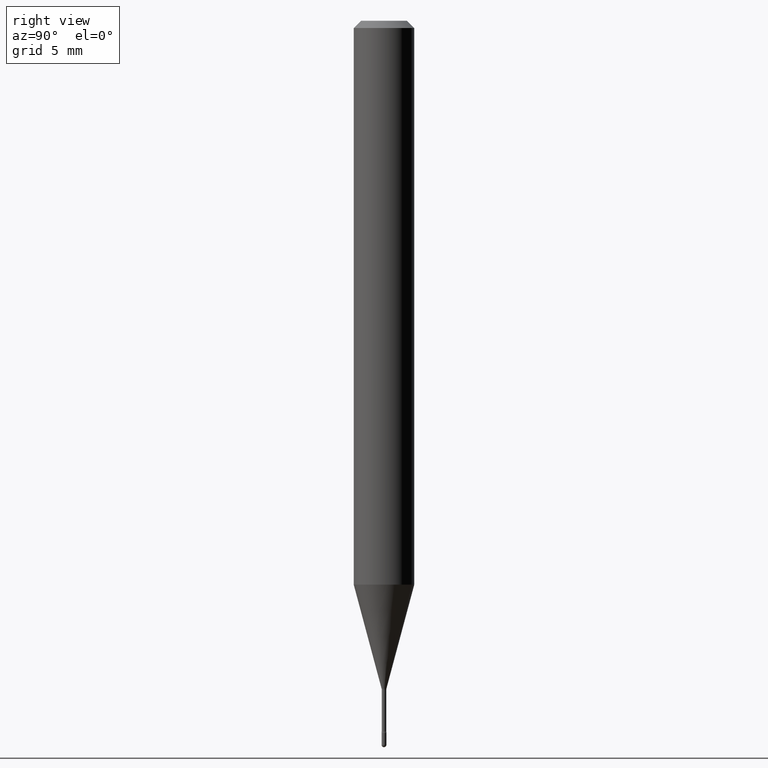
[diagram: clean part render]
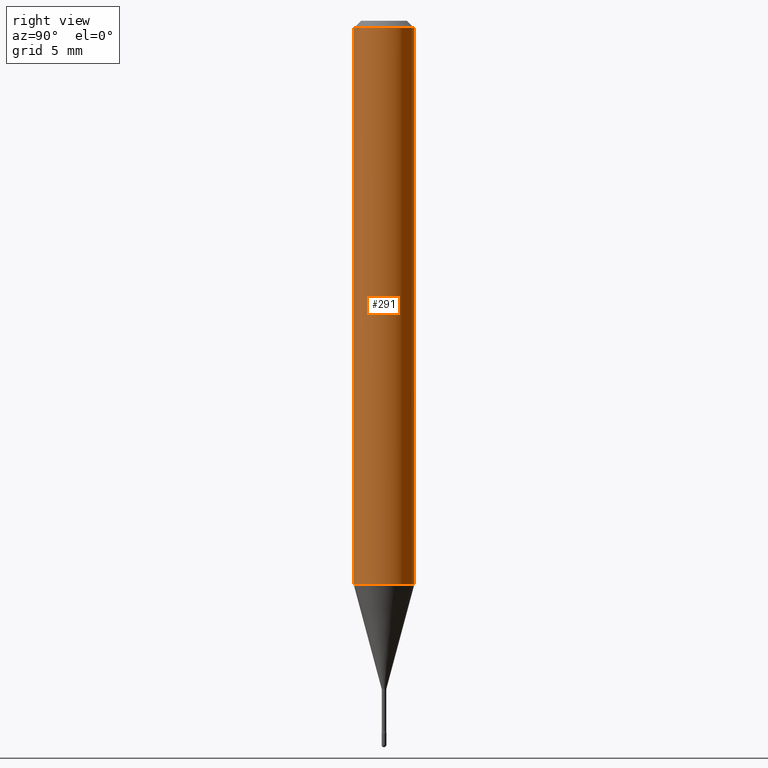
[diagram: same view with one face highlighted and labeled with its STEP entity id]
A machine part, right view. The second image highlights one B-rep face of the part: STEP entity #291.
In plain terms, the highlighted cylindrical surface (edge-blend (fillet) strip) has radius 1.5875 mm, axis along (-0, 0, 1).
Its self-contained STEP definition (entity closure, byte-faithful):
#5 = CYLINDRICAL_SURFACE ( 'NONE', #343, 0.06250000000000000000 ) ;
#13 = VERTEX_POINT ( 'NONE', #493 ) ;
#35 = CARTESIAN_POINT ( 'NONE',  ( 4.440892098500909166E-16, 0.06249999999999594075, -1.164287463322519756 ) ) ;
#59 = DIRECTION ( 'NONE',  ( -2.444369529050259608E-29, 3.493055566267258911E-15, 1.000000000000000000 ) ) ;
#61 = DIRECTION ( 'NONE',  ( -2.444369529050259608E-29, 3.493055566267258516E-15, 1.000000000000000000 ) ) ;
#89 = CARTESIAN_POINT ( 'NONE',  ( 4.440892098500912124E-16, 0.06249999999999995837, -0.01500000000000030129 ) ) ;
#99 = CARTESIAN_POINT ( 'NONE',  ( -1.169113584055446105E-44, 1.669184350826100908E-30, 4.780733988912460139E-16 ) ) ;
#115 = CIRCLE ( 'NONE', #384, 0.06250000000000000000 ) ;
#119 = CARTESIAN_POINT ( 'NONE',  ( -4.364351673553912750E-16, -0.06250000000000005551, -0.01499999999999986587 ) ) ;
#141 = DIRECTION ( 'NONE',  ( -2.444369529050259608E-29, 3.493055566267258516E-15, 1.000000000000000000 ) ) ;
#161 = LINE ( 'NONE', #402, #198 ) ;
#188 = VERTEX_POINT ( 'NONE', #35 ) ;
#198 = VECTOR ( 'NONE', #278, 39.37007874015748143 ) ;
#209 = AXIS2_PLACEMENT_3D ( 'NONE', #365, #61, #276 ) ;
#227 = DIRECTION ( 'NONE',  ( -6.982962677686265922E-15, -1.000000000000000000, 3.493055566267257728E-15 ) ) ;
#228 = VERTEX_POINT ( 'NONE', #119 ) ;
#233 = ORIENTED_EDGE ( 'NONE', *, *, #420, .T. ) ;
#239 = LINE ( 'NONE', #321, #464 ) ;
#250 = EDGE_LOOP ( 'NONE', ( #540, #233, #342, #419 ) ) ;
#276 = DIRECTION ( 'NONE',  ( -6.982962677686265922E-15, -1.000000000000000000, 4.370956789862821150E-15 ) ) ;
#278 = DIRECTION ( 'NONE',  ( -2.444369529050259608E-29, 3.493055566267258911E-15, 1.000000000000000000 ) ) ;
#291 = ADVANCED_FACE ( 'NONE', ( #304 ), #5, .T. ) ;
#304 = FACE_OUTER_BOUND ( 'NONE', #250, .T. ) ;
#320 = CIRCLE ( 'NONE', #209, 0.06250000000000000000 ) ;
#321 = CARTESIAN_POINT ( 'NONE',  ( -4.364351673553916201E-16, -0.06250000000000000000, 6.963893717829496712E-16 ) ) ;
#342 = ORIENTED_EDGE ( 'NONE', *, *, #426, .F. ) ;
#343 = AXIS2_PLACEMENT_3D ( 'NONE', #99, #141, #227 ) ;
#365 = CARTESIAN_POINT ( 'NONE',  ( 2.845948798400788253E-29, -4.066920804493912675E-15, -1.164287463322519312 ) ) ;
#384 = AXIS2_PLACEMENT_3D ( 'NONE', #405, #458, #535 ) ;
#394 = VERTEX_POINT ( 'NONE', #89 ) ;
#402 = CARTESIAN_POINT ( 'NONE',  ( 4.440892098500625669E-16, 0.06250000000000000000, 2.597574259995424060E-16 ) ) ;
#405 = CARTESIAN_POINT ( 'NONE',  ( 3.666554293575409416E-31, -5.239583349400916642E-17, -0.01500000000000008271 ) ) ;
#411 = EDGE_CURVE ( 'NONE', #13, #228, #239, .T. ) ;
#419 = ORIENTED_EDGE ( 'NONE', *, *, #411, .F. ) ;
#420 = EDGE_CURVE ( 'NONE', #188, #394, #161, .T. ) ;
#426 = EDGE_CURVE ( 'NONE', #228, #394, #115, .T. ) ;
#458 = DIRECTION ( 'NONE',  ( -2.444369529050259608E-29, 3.493055566267258516E-15, 1.000000000000000000 ) ) ;
#464 = VECTOR ( 'NONE', #59, 39.37007874015748143 ) ;
#470 = EDGE_CURVE ( 'NONE', #13, #188, #320, .T. ) ;
#493 = CARTESIAN_POINT ( 'NONE',  ( -4.364351673553632704E-16, -0.06250000000000409395, -1.164287463322519089 ) ) ;
#535 = DIRECTION ( 'NONE',  ( -6.982962677686265922E-15, -1.000000000000000000, 3.483106191921935554E-15 ) ) ;
#540 = ORIENTED_EDGE ( 'NONE', *, *, #470, .T. ) ;